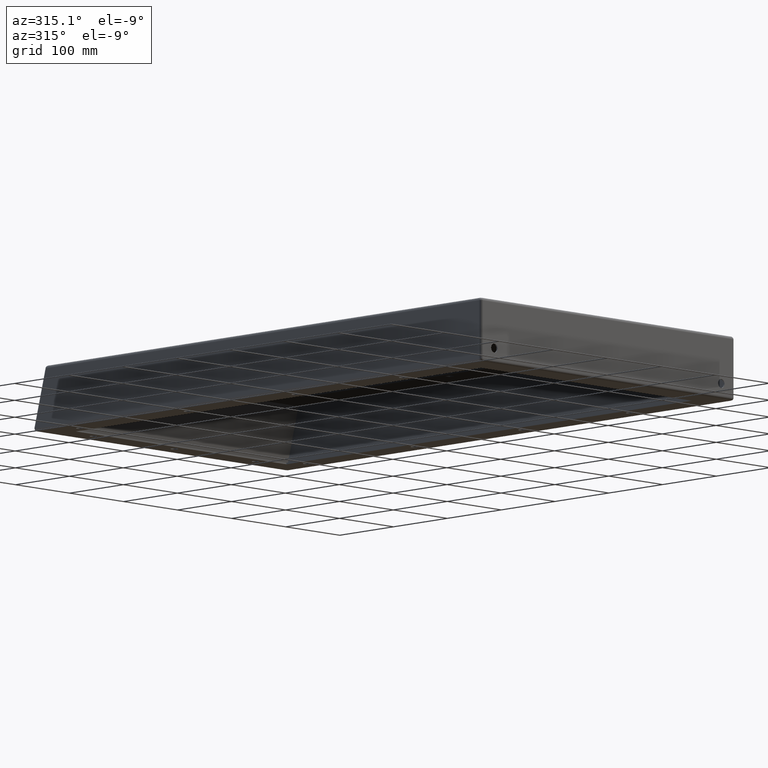
[diagram: clean part render]
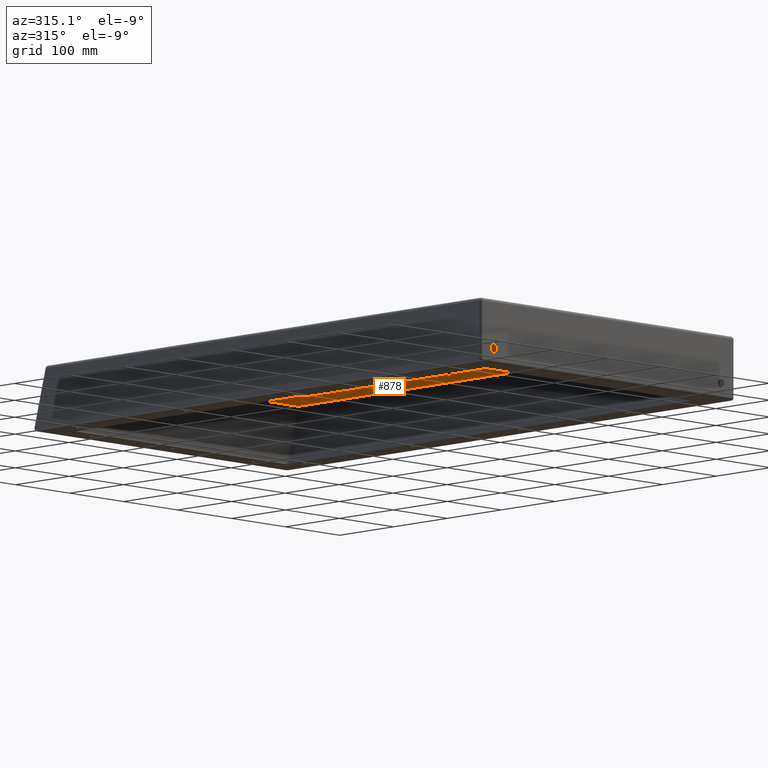
[diagram: same view with one face highlighted and labeled with its STEP entity id]
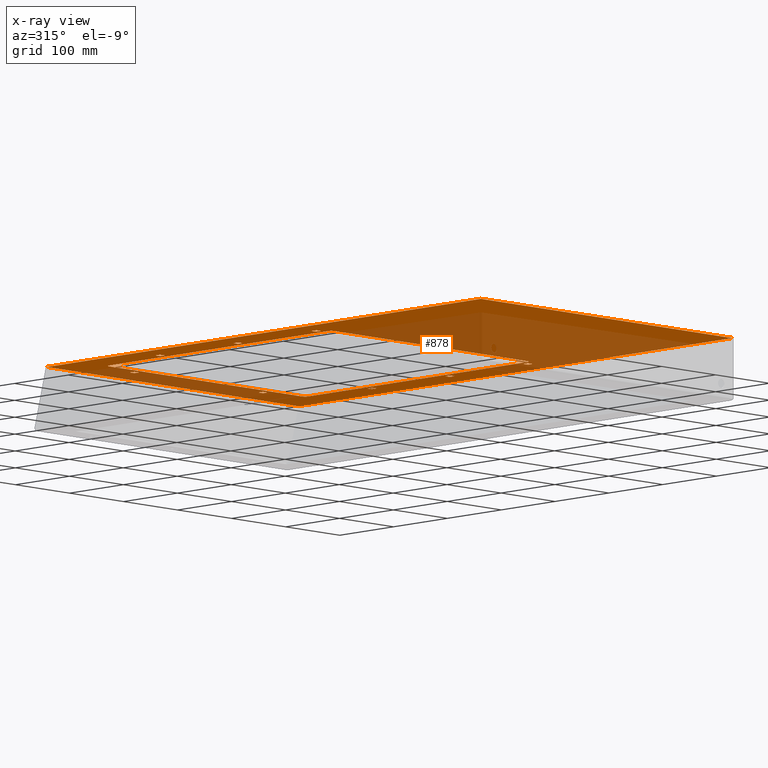
[diagram: x-ray of the same camera — body ghosted, the highlighted face saturated]
A machine part, auxiliary view. The second image highlights one B-rep face of the part: STEP entity #878.
The next image is the same camera in x-ray: the body ghosted, the highlighted face saturated — about 55% of this face is hidden behind the body in this view.
In plain terms, the highlighted planar face has unit normal (0, 0, -1).
Its self-contained STEP definition (entity closure, byte-faithful):
#2 = CARTESIAN_POINT ( 'NONE',  ( 114.7500000000003000, 810.0000000000004500, 83.00000000000008500 ) ) ;
#3 = DIRECTION ( 'NONE',  ( 3.265361837132874700E-015, 1.000000000000000000, 1.027984282060330300E-016 ) ) ;
#4 = CARTESIAN_POINT ( 'NONE',  ( 235.0000000000000000, 755.7500000000000000, 83.00000000000008500 ) ) ;
#5 = DIRECTION ( 'NONE',  ( -1.000000000000000000, 0.0000000000000000000, 0.0000000000000000000 ) ) ;
#6 = CARTESIAN_POINT ( 'NONE',  ( 123.2500000000002100, 810.0000000000002300, 83.00000000000008500 ) ) ;
#7 = DIRECTION ( 'NONE',  ( -1.632680918566437400E-015, -1.000000000000000000, -1.027984282060330300E-016 ) ) ;
#8 = CARTESIAN_POINT ( 'NONE',  ( -191.7499999999999700, 810.0000000000000000, 83.00000000000008500 ) ) ;
#9 = DIRECTION ( 'NONE',  ( 0.0000000000000000000, -1.000000000000000000, -1.027984282060330300E-016 ) ) ;
#10 = CARTESIAN_POINT ( 'NONE',  ( 235.0000000000000000, 494.2500000000000000, 83.00000000000005700 ) ) ;
#11 = DIRECTION ( 'NONE',  ( 1.000000000000000000, 0.0000000000000000000, 0.0000000000000000000 ) ) ;
#12 = CARTESIAN_POINT ( 'NONE',  ( -200.2500000000000300, 810.0000000000000000, 83.00000000000008500 ) ) ;
#13 = DIRECTION ( 'NONE',  ( 0.0000000000000000000, 1.000000000000000000, 1.027984282060330300E-016 ) ) ;
#14 = CARTESIAN_POINT ( 'NONE',  ( 235.0000000000000000, 485.7500000000000000, 83.00000000000005700 ) ) ;
#15 = DIRECTION ( 'NONE',  ( -1.000000000000000000, 0.0000000000000000000, 0.0000000000000000000 ) ) ;
#16 = CARTESIAN_POINT ( 'NONE',  ( 200.2500000000000000, 810.0000000000000000, 83.00000000000008500 ) ) ;
#17 = DIRECTION ( 'NONE',  ( 0.0000000000000000000, -1.000000000000000000, -1.027984282060330300E-016 ) ) ;
#18 = CARTESIAN_POINT ( 'NONE',  ( 235.0000000000000000, 349.2500000000000600, 83.00000000000004300 ) ) ;
#19 = DIRECTION ( 'NONE',  ( 1.000000000000000000, -0.0000000000000000000, 0.0000000000000000000 ) ) ;
#20 = CARTESIAN_POINT ( 'NONE',  ( 191.7500000000015100, 810.0000000000001100, 83.00000000000008500 ) ) ;
#21 = DIRECTION ( 'NONE',  ( 3.265361837132810800E-015, 1.000000000000000000, 1.027984282060330300E-016 ) ) ;
#22 = CARTESIAN_POINT ( 'NONE',  ( 235.0000000000000000, 340.7500000000000600, 83.00000000000004300 ) ) ;
#23 = DIRECTION ( 'NONE',  ( -1.000000000000000000, 0.0000000000000000000, 0.0000000000000000000 ) ) ;
#24 = CARTESIAN_POINT ( 'NONE',  ( -191.7499999999999700, 810.0000000000000000, 83.00000000000008500 ) ) ;
#25 = DIRECTION ( 'NONE',  ( 0.0000000000000000000, -1.000000000000000000, -1.027984282060330300E-016 ) ) ;
#26 = CARTESIAN_POINT ( 'NONE',  ( 235.0000000000000000, 349.2500000000000600, 83.00000000000004300 ) ) ;
#27 = DIRECTION ( 'NONE',  ( 1.000000000000000000, 0.0000000000000000000, 0.0000000000000000000 ) ) ;
#28 = CARTESIAN_POINT ( 'NONE',  ( -200.2500000000000300, 810.0000000000000000, 83.00000000000008500 ) ) ;
#29 = DIRECTION ( 'NONE',  ( 0.0000000000000000000, 1.000000000000000000, 1.027984282060330300E-016 ) ) ;
#30 = CARTESIAN_POINT ( 'NONE',  ( 235.0000000000000000, 340.7500000000000600, 83.00000000000004300 ) ) ;
#31 = DIRECTION ( 'NONE',  ( -1.000000000000000000, 0.0000000000000000000, 0.0000000000000000000 ) ) ;
#32 = CARTESIAN_POINT ( 'NONE',  ( 178.9999999999999400, 742.0000000000001100, 83.00000000000007100 ) ) ;
#33 = DIRECTION ( 'NONE',  ( -0.0000000000000000000, -1.027984282060330300E-016, 1.000000000000000000 ) ) ;
#34 = DIRECTION ( 'NONE',  ( 0.0000000000000000000, 1.000000000000000000, 0.0000000000000000000 ) ) ;
#35 = CARTESIAN_POINT ( 'NONE',  ( -179.0000000000000600, 742.0000000000000000, 83.00000000000007100 ) ) ;
#36 = DIRECTION ( 'NONE',  ( -0.0000000000000000000, -1.027984282060330300E-016, 1.000000000000000000 ) ) ;
#37 = DIRECTION ( 'NONE',  ( 0.0000000000000000000, 1.000000000000000000, 0.0000000000000000000 ) ) ;
#38 = CARTESIAN_POINT ( 'NONE',  ( -232.9999999999999700, 810.0000000000000000, 83.00000000000008500 ) ) ;
#39 = DIRECTION ( 'NONE',  ( 0.0000000000000000000, -1.000000000000000000, -1.027984282060330300E-016 ) ) ;
#40 = CARTESIAN_POINT ( 'NONE',  ( -179.0000000000000000, 334.0000000000000600, 83.00000000000002800 ) ) ;
#41 = DIRECTION ( 'NONE',  ( -0.0000000000000000000, -1.027984282060330300E-016, 1.000000000000000000 ) ) ;
#42 = DIRECTION ( 'NONE',  ( 0.0000000000000000000, 1.000000000000000000, 0.0000000000000000000 ) ) ;
#43 = CARTESIAN_POINT ( 'NONE',  ( 235.0000000000000000, 1.999999999999989600, 82.99999999999998600 ) ) ;
#44 = CARTESIAN_POINT ( 'NONE',  ( 179.0000000000000000, 334.0000000000000600, 83.00000000000002800 ) ) ;
#45 = DIRECTION ( 'NONE',  ( -0.0000000000000000000, -1.027984282060330300E-016, 1.000000000000000000 ) ) ;
#46 = DIRECTION ( 'NONE',  ( 0.0000000000000000000, 1.000000000000000000, 0.0000000000000000000 ) ) ;
#47 = CARTESIAN_POINT ( 'NONE',  ( 232.9999999999999700, 810.0000000000000000, 83.00000000000008500 ) ) ;
#48 = DIRECTION ( 'NONE',  ( 0.0000000000000000000, -1.000000000000000000, -1.027984282060330300E-016 ) ) ;
#49 = DIRECTION ( 'NONE',  ( -1.000000000000000000, 0.0000000000000000000, 0.0000000000000000000 ) ) ;
#153 = EDGE_LOOP ( 'NONE', ( #1584, #1585, #1586, #1587 ) ) ;
#157 = EDGE_LOOP ( 'NONE', ( #1570, #1571, #1572, #1573, #1574, #1575, #1582, #1583 ) ) ;
#179 = CARTESIAN_POINT ( 'NONE',  ( -123.2500000000001100, 755.7500000000000000, 83.00000000000008500 ) ) ;
#183 = CARTESIAN_POINT ( 'NONE',  ( -191.7500000000000000, 630.7499999999998900, 83.00000000000007100 ) ) ;
#188 = CARTESIAN_POINT ( 'NONE',  ( -200.2500000000000000, 630.7499999999998900, 83.00000000000007100 ) ) ;
#192 = CARTESIAN_POINT ( 'NONE',  ( 114.7500000000001100, 755.7500000000000000, 83.00000000000008500 ) ) ;
#193 = CARTESIAN_POINT ( 'NONE',  ( 191.7499999999999700, 485.7500000000000000, 83.00000000000005700 ) ) ;
#197 = CARTESIAN_POINT ( 'NONE',  ( -123.2500000000001400, 764.2499999999998900, 83.00000000000008500 ) ) ;
#198 = CARTESIAN_POINT ( 'NONE',  ( 200.2500000000000000, 485.7500000000000000, 83.00000000000005700 ) ) ;
#199 = CARTESIAN_POINT ( 'NONE',  ( 114.7500000000001400, 764.2499999999998900, 83.00000000000008500 ) ) ;
#200 = CARTESIAN_POINT ( 'NONE',  ( -114.7500000000001400, 764.2499999999998900, 83.00000000000008500 ) ) ;
#201 = CARTESIAN_POINT ( 'NONE',  ( -114.7500000000001400, 755.7500000000000000, 83.00000000000008500 ) ) ;
#202 = CARTESIAN_POINT ( 'NONE',  ( -191.7500000000000000, 494.2500000000000000, 83.00000000000005700 ) ) ;
#203 = CARTESIAN_POINT ( 'NONE',  ( -200.2500000000000300, 494.2500000000000000, 83.00000000000005700 ) ) ;
#204 = CARTESIAN_POINT ( 'NONE',  ( 123.2500000000001400, 764.2499999999998900, 83.00000000000008500 ) ) ;
#205 = CARTESIAN_POINT ( 'NONE',  ( 123.2500000000001300, 755.7500000000000000, 83.00000000000008500 ) ) ;
#206 = CARTESIAN_POINT ( 'NONE',  ( 200.2500000000000000, 349.2500000000000600, 83.00000000000004300 ) ) ;
#207 = CARTESIAN_POINT ( 'NONE',  ( 191.7500000000000000, 349.2500000000000600, 83.00000000000004300 ) ) ;
#208 = CARTESIAN_POINT ( 'NONE',  ( -191.7500000000000000, 485.7500000000000000, 83.00000000000005700 ) ) ;
#209 = CARTESIAN_POINT ( 'NONE',  ( -200.2500000000000000, 485.7500000000000000, 83.00000000000005700 ) ) ;
#210 = CARTESIAN_POINT ( 'NONE',  ( -191.7500000000000000, 349.2500000000000600, 83.00000000000004300 ) ) ;
#211 = CARTESIAN_POINT ( 'NONE',  ( -200.2500000000000300, 349.2500000000000600, 83.00000000000004300 ) ) ;
#212 = CARTESIAN_POINT ( 'NONE',  ( 200.2500000000000000, 340.7500000000000600, 83.00000000000004300 ) ) ;
#213 = CARTESIAN_POINT ( 'NONE',  ( 191.7499999999999700, 340.7500000000000600, 83.00000000000004300 ) ) ;
#214 = CARTESIAN_POINT ( 'NONE',  ( -191.7500000000000000, 340.7500000000000600, 83.00000000000004300 ) ) ;
#215 = CARTESIAN_POINT ( 'NONE',  ( -200.2500000000000000, 340.7500000000000600, 83.00000000000004300 ) ) ;
#216 = CARTESIAN_POINT ( 'NONE',  ( -232.9999999999999700, 1.999999999999989600, 83.00000000000000000 ) ) ;
#217 = CARTESIAN_POINT ( 'NONE',  ( 232.9999999999999700, 1.999999999999989600, 83.00000000000000000 ) ) ;
#305 = CARTESIAN_POINT ( 'NONE',  ( 191.7500000000000000, 494.2500000000000000, 83.00000000000005700 ) ) ;
#316 = CARTESIAN_POINT ( 'NONE',  ( 179.0000000000000000, 329.0000000000000600, 83.00000000000002800 ) ) ;
#323 = CARTESIAN_POINT ( 'NONE',  ( 200.2500000000000000, 494.2500000000000000, 83.00000000000005700 ) ) ;
#324 = CARTESIAN_POINT ( 'NONE',  ( 183.9999999999999400, 742.0000000000001100, 83.00000000000007100 ) ) ;
#543 = EDGE_LOOP ( 'NONE', ( #1554, #1555, #1556, #1557 ) ) ;
#544 = EDGE_LOOP ( 'NONE', ( #1566, #1567, #1568, #1569 ) ) ;
#545 = EDGE_LOOP ( 'NONE', ( #1558, #1559, #1560, #1561 ) ) ;
#551 = EDGE_LOOP ( 'NONE', ( #1542, #1543, #1544, #1545 ) ) ;
#558 = EDGE_LOOP ( 'NONE', ( #1550, #1551, #1552, #1553 ) ) ;
#559 = EDGE_LOOP ( 'NONE', ( #1562, #1563, #1564, #1565 ) ) ;
#766 = DIRECTION ( 'NONE',  ( 0.0000000000000000000, 1.027984282060330300E-016, -1.000000000000000000 ) ) ;
#769 = PLANE ( 'NONE',  #1821 ) ;
#770 = CARTESIAN_POINT ( 'NONE',  ( 235.0000000000000000, 810.0000000000000000, 83.00000000000008500 ) ) ;
#772 = DIRECTION ( 'NONE',  ( 0.0000000000000000000, 1.000000000000000000, 1.027984282060330300E-016 ) ) ;
#813 = EDGE_LOOP ( 'NONE', ( #1546, #1547, #1548, #1549 ) ) ;
#819 = EDGE_LOOP ( 'NONE', ( #1538, #1539, #1540, #1541 ) ) ;
#878 = ADVANCED_FACE ( 'NONE', ( #2159, #2161, #2158, #2160, #2157, #2162, #2163, #2164, #2165, #2166 ), #769, .T. ) ;
#886 = VERTEX_POINT ( 'NONE', #2252 ) ;
#889 = VERTEX_POINT ( 'NONE', #2244 ) ;
#893 = VERTEX_POINT ( 'NONE', #2257 ) ;
#895 = VERTEX_POINT ( 'NONE', #2259 ) ;
#897 = VERTEX_POINT ( 'NONE', #2260 ) ;
#903 = VERTEX_POINT ( 'NONE', #2266 ) ;
#906 = VERTEX_POINT ( 'NONE', #2269 ) ;
#908 = VERTEX_POINT ( 'NONE', #2271 ) ;
#909 = VERTEX_POINT ( 'NONE', #2272 ) ;
#911 = VERTEX_POINT ( 'NONE', #2274 ) ;
#912 = VERTEX_POINT ( 'NONE', #2275 ) ;
#914 = VERTEX_POINT ( 'NONE', #2277 ) ;
#915 = VERTEX_POINT ( 'NONE', #2278 ) ;
#916 = VERTEX_POINT ( 'NONE', #2279 ) ;
#1059 = EDGE_CURVE ( 'NONE', #1519, #895, #2605, .T. ) ;
#1061 = EDGE_CURVE ( 'NONE', #1511, #897, #2609, .T. ) ;
#1064 = EDGE_CURVE ( 'NONE', #886, #889, #2615, .T. ) ;
#1067 = EDGE_CURVE ( 'NONE', #906, #893, #2621, .T. ) ;
#1100 = EDGE_CURVE ( 'NONE', #912, #908, #2665, .T. ) ;
#1101 = EDGE_CURVE ( 'NONE', #911, #903, #2673, .T. ) ;
#1102 = EDGE_CURVE ( 'NONE', #909, #911, #2675, .T. ) ;
#1103 = EDGE_CURVE ( 'NONE', #915, #909, #2677, .T. ) ;
#1104 = EDGE_CURVE ( 'NONE', #903, #915, #2679, .T. ) ;
#1105 = EDGE_CURVE ( 'NONE', #914, #1282, #2681, .T. ) ;
#1106 = EDGE_CURVE ( 'NONE', #916, #914, #2683, .T. ) ;
#1107 = EDGE_CURVE ( 'NONE', #1283, #916, #2685, .T. ) ;
#1108 = EDGE_CURVE ( 'NONE', #1282, #1283, #2687, .T. ) ;
#1109 = EDGE_CURVE ( 'NONE', #1518, #1286, #2689, .T. ) ;
#1110 = EDGE_CURVE ( 'NONE', #1500, #1518, #2691, .T. ) ;
#1111 = EDGE_CURVE ( 'NONE', #1287, #1500, #2693, .T. ) ;
#1112 = EDGE_CURVE ( 'NONE', #1286, #1287, #2695, .T. ) ;
#1113 = EDGE_CURVE ( 'NONE', #1284, #1290, #2697, .T. ) ;
#1114 = EDGE_CURVE ( 'NONE', #1285, #1284, #2699, .T. ) ;
#1115 = EDGE_CURVE ( 'NONE', #1291, #1285, #2701, .T. ) ;
#1116 = EDGE_CURVE ( 'NONE', #1290, #1291, #2703, .T. ) ;
#1117 = EDGE_CURVE ( 'NONE', #1288, #1294, #2705, .T. ) ;
#1118 = EDGE_CURVE ( 'NONE', #1289, #1288, #2707, .T. ) ;
#1119 = EDGE_CURVE ( 'NONE', #1295, #1289, #2709, .T. ) ;
#1120 = EDGE_CURVE ( 'NONE', #1294, #1295, #2711, .T. ) ;
#1121 = EDGE_CURVE ( 'NONE', #1292, #1298, #2713, .T. ) ;
#1122 = EDGE_CURVE ( 'NONE', #1293, #1292, #2715, .T. ) ;
#1123 = EDGE_CURVE ( 'NONE', #1299, #1293, #2717, .T. ) ;
#1124 = EDGE_CURVE ( 'NONE', #1298, #1299, #2719, .T. ) ;
#1125 = EDGE_CURVE ( 'NONE', #1296, #1302, #2721, .T. ) ;
#1126 = EDGE_CURVE ( 'NONE', #1297, #1296, #2723, .T. ) ;
#1127 = EDGE_CURVE ( 'NONE', #1303, #1297, #2725, .T. ) ;
#1128 = EDGE_CURVE ( 'NONE', #1302, #1303, #2727, .T. ) ;
#1129 = EDGE_CURVE ( 'NONE', #1300, #1304, #2729, .T. ) ;
#1130 = EDGE_CURVE ( 'NONE', #1301, #1300, #2731, .T. ) ;
#1131 = EDGE_CURVE ( 'NONE', #1305, #1301, #2733, .T. ) ;
#1132 = EDGE_CURVE ( 'NONE', #1304, #1305, #2735, .T. ) ;
#1133 = EDGE_CURVE ( 'NONE', #1519, #893, #2737, .T. ) ;
#1134 = EDGE_CURVE ( 'NONE', #906, #889, #2671, .T. ) ;
#1135 = EDGE_CURVE ( 'NONE', #886, #897, #2740, .T. ) ;
#1136 = EDGE_CURVE ( 'NONE', #1511, #895, #2741, .T. ) ;
#1137 = EDGE_CURVE ( 'NONE', #908, #1306, #2742, .T. ) ;
#1138 = EDGE_CURVE ( 'NONE', #912, #1307, #2743, .T. ) ;
#1139 = EDGE_CURVE ( 'NONE', #1307, #1306, #2739, .T. ) ;
#1282 = VERTEX_POINT ( 'NONE', #183 ) ;
#1283 = VERTEX_POINT ( 'NONE', #188 ) ;
#1284 = VERTEX_POINT ( 'NONE', #197 ) ;
#1285 = VERTEX_POINT ( 'NONE', #179 ) ;
#1286 = VERTEX_POINT ( 'NONE', #198 ) ;
#1287 = VERTEX_POINT ( 'NONE', #193 ) ;
#1288 = VERTEX_POINT ( 'NONE', #199 ) ;
#1289 = VERTEX_POINT ( 'NONE', #192 ) ;
#1290 = VERTEX_POINT ( 'NONE', #200 ) ;
#1291 = VERTEX_POINT ( 'NONE', #201 ) ;
#1292 = VERTEX_POINT ( 'NONE', #202 ) ;
#1293 = VERTEX_POINT ( 'NONE', #203 ) ;
#1294 = VERTEX_POINT ( 'NONE', #204 ) ;
#1295 = VERTEX_POINT ( 'NONE', #205 ) ;
#1296 = VERTEX_POINT ( 'NONE', #206 ) ;
#1297 = VERTEX_POINT ( 'NONE', #207 ) ;
#1298 = VERTEX_POINT ( 'NONE', #208 ) ;
#1299 = VERTEX_POINT ( 'NONE', #209 ) ;
#1300 = VERTEX_POINT ( 'NONE', #210 ) ;
#1301 = VERTEX_POINT ( 'NONE', #211 ) ;
#1302 = VERTEX_POINT ( 'NONE', #212 ) ;
#1303 = VERTEX_POINT ( 'NONE', #213 ) ;
#1304 = VERTEX_POINT ( 'NONE', #214 ) ;
#1305 = VERTEX_POINT ( 'NONE', #215 ) ;
#1306 = VERTEX_POINT ( 'NONE', #216 ) ;
#1307 = VERTEX_POINT ( 'NONE', #217 ) ;
#1500 = VERTEX_POINT ( 'NONE', #305 ) ;
#1511 = VERTEX_POINT ( 'NONE', #316 ) ;
#1518 = VERTEX_POINT ( 'NONE', #323 ) ;
#1519 = VERTEX_POINT ( 'NONE', #324 ) ;
#1538 = ORIENTED_EDGE ( 'NONE', *, *, #1101, .F. ) ;
#1539 = ORIENTED_EDGE ( 'NONE', *, *, #1102, .F. ) ;
#1540 = ORIENTED_EDGE ( 'NONE', *, *, #1103, .F. ) ;
#1541 = ORIENTED_EDGE ( 'NONE', *, *, #1104, .F. ) ;
#1542 = ORIENTED_EDGE ( 'NONE', *, *, #1105, .F. ) ;
#1543 = ORIENTED_EDGE ( 'NONE', *, *, #1106, .F. ) ;
#1544 = ORIENTED_EDGE ( 'NONE', *, *, #1107, .F. ) ;
#1545 = ORIENTED_EDGE ( 'NONE', *, *, #1108, .F. ) ;
#1546 = ORIENTED_EDGE ( 'NONE', *, *, #1109, .F. ) ;
#1547 = ORIENTED_EDGE ( 'NONE', *, *, #1110, .F. ) ;
#1548 = ORIENTED_EDGE ( 'NONE', *, *, #1111, .F. ) ;
#1549 = ORIENTED_EDGE ( 'NONE', *, *, #1112, .F. ) ;
#1550 = ORIENTED_EDGE ( 'NONE', *, *, #1113, .F. ) ;
#1551 = ORIENTED_EDGE ( 'NONE', *, *, #1114, .F. ) ;
#1552 = ORIENTED_EDGE ( 'NONE', *, *, #1115, .F. ) ;
#1553 = ORIENTED_EDGE ( 'NONE', *, *, #1116, .F. ) ;
#1554 = ORIENTED_EDGE ( 'NONE', *, *, #1117, .F. ) ;
#1555 = ORIENTED_EDGE ( 'NONE', *, *, #1118, .F. ) ;
#1556 = ORIENTED_EDGE ( 'NONE', *, *, #1119, .F. ) ;
#1557 = ORIENTED_EDGE ( 'NONE', *, *, #1120, .F. ) ;
#1558 = ORIENTED_EDGE ( 'NONE', *, *, #1121, .F. ) ;
#1559 = ORIENTED_EDGE ( 'NONE', *, *, #1122, .F. ) ;
#1560 = ORIENTED_EDGE ( 'NONE', *, *, #1123, .F. ) ;
#1561 = ORIENTED_EDGE ( 'NONE', *, *, #1124, .F. ) ;
#1562 = ORIENTED_EDGE ( 'NONE', *, *, #1125, .F. ) ;
#1563 = ORIENTED_EDGE ( 'NONE', *, *, #1126, .F. ) ;
#1564 = ORIENTED_EDGE ( 'NONE', *, *, #1127, .F. ) ;
#1565 = ORIENTED_EDGE ( 'NONE', *, *, #1128, .F. ) ;
#1566 = ORIENTED_EDGE ( 'NONE', *, *, #1129, .F. ) ;
#1567 = ORIENTED_EDGE ( 'NONE', *, *, #1130, .F. ) ;
#1568 = ORIENTED_EDGE ( 'NONE', *, *, #1131, .F. ) ;
#1569 = ORIENTED_EDGE ( 'NONE', *, *, #1132, .F. ) ;
#1570 = ORIENTED_EDGE ( 'NONE', *, *, #1059, .F. ) ;
#1571 = ORIENTED_EDGE ( 'NONE', *, *, #1133, .T. ) ;
#1572 = ORIENTED_EDGE ( 'NONE', *, *, #1067, .F. ) ;
#1573 = ORIENTED_EDGE ( 'NONE', *, *, #1134, .T. ) ;
#1574 = ORIENTED_EDGE ( 'NONE', *, *, #1064, .F. ) ;
#1575 = ORIENTED_EDGE ( 'NONE', *, *, #1135, .T. ) ;
#1582 = ORIENTED_EDGE ( 'NONE', *, *, #1061, .F. ) ;
#1583 = ORIENTED_EDGE ( 'NONE', *, *, #1136, .T. ) ;
#1584 = ORIENTED_EDGE ( 'NONE', *, *, #1137, .F. ) ;
#1585 = ORIENTED_EDGE ( 'NONE', *, *, #1100, .F. ) ;
#1586 = ORIENTED_EDGE ( 'NONE', *, *, #1138, .T. ) ;
#1587 = ORIENTED_EDGE ( 'NONE', *, *, #1139, .T. ) ;
#1821 = AXIS2_PLACEMENT_3D ( 'NONE', #770, #766, #772 ) ;
#1876 = AXIS2_PLACEMENT_3D ( 'NONE', #32, #33, #34 ) ;
#1877 = AXIS2_PLACEMENT_3D ( 'NONE', #35, #36, #37 ) ;
#1878 = AXIS2_PLACEMENT_3D ( 'NONE', #40, #41, #42 ) ;
#1879 = AXIS2_PLACEMENT_3D ( 'NONE', #44, #45, #46 ) ;
#2157 = FACE_BOUND ( 'NONE', #543, .T. ) ;
#2158 = FACE_BOUND ( 'NONE', #813, .T. ) ;
#2159 = FACE_BOUND ( 'NONE', #819, .T. ) ;
#2160 = FACE_BOUND ( 'NONE', #558, .T. ) ;
#2161 = FACE_BOUND ( 'NONE', #551, .T. ) ;
#2162 = FACE_BOUND ( 'NONE', #545, .T. ) ;
#2163 = FACE_BOUND ( 'NONE', #559, .T. ) ;
#2164 = FACE_BOUND ( 'NONE', #544, .T. ) ;
#2165 = FACE_BOUND ( 'NONE', #157, .T. ) ;
#2166 = FACE_OUTER_BOUND ( 'NONE', #153, .T. ) ;
#2244 = CARTESIAN_POINT ( 'NONE',  ( -184.0000000000000600, 742.0000000000000000, 83.00000000000007100 ) ) ;
#2252 = CARTESIAN_POINT ( 'NONE',  ( -184.0000000000000000, 334.0000000000000600, 83.00000000000002800 ) ) ;
#2257 = CARTESIAN_POINT ( 'NONE',  ( 178.9999999999999400, 747.0000000000001100, 83.00000000000008500 ) ) ;
#2259 = CARTESIAN_POINT ( 'NONE',  ( 184.0000000000000000, 334.0000000000000600, 83.00000000000002800 ) ) ;
#2260 = CARTESIAN_POINT ( 'NONE',  ( -179.0000000000000000, 329.0000000000000600, 83.00000000000002800 ) ) ;
#2266 = CARTESIAN_POINT ( 'NONE',  ( 200.2500000000000000, 630.7499999999998900, 83.00000000000007100 ) ) ;
#2269 = CARTESIAN_POINT ( 'NONE',  ( -179.0000000000000300, 747.0000000000000000, 83.00000000000008500 ) ) ;
#2271 = CARTESIAN_POINT ( 'NONE',  ( -232.9999999999999700, 808.4653460240421100, 83.00000000000008500 ) ) ;
#2272 = CARTESIAN_POINT ( 'NONE',  ( 191.7500000000000000, 639.2500000000000000, 83.00000000000007100 ) ) ;
#2274 = CARTESIAN_POINT ( 'NONE',  ( 200.2500000000000000, 639.2500000000000000, 83.00000000000007100 ) ) ;
#2275 = CARTESIAN_POINT ( 'NONE',  ( 232.9999999999999700, 808.4653460240421100, 83.00000000000008500 ) ) ;
#2277 = CARTESIAN_POINT ( 'NONE',  ( -191.7500000000000000, 639.2500000000000000, 83.00000000000007100 ) ) ;
#2278 = CARTESIAN_POINT ( 'NONE',  ( 191.7499999999999700, 630.7499999999998900, 83.00000000000007100 ) ) ;
#2279 = CARTESIAN_POINT ( 'NONE',  ( -200.2500000000000300, 639.2500000000000000, 83.00000000000007100 ) ) ;
#2605 = LINE ( 'NONE', #2850, #2608 ) ;
#2608 = VECTOR ( 'NONE', #2851, 1000.000000000000000 ) ;
#2609 = LINE ( 'NONE', #2854, #2612 ) ;
#2612 = VECTOR ( 'NONE', #2855, 1000.000000000000000 ) ;
#2615 = LINE ( 'NONE', #2860, #2618 ) ;
#2618 = VECTOR ( 'NONE', #2861, 1000.000000000000000 ) ;
#2621 = LINE ( 'NONE', #2866, #2624 ) ;
#2624 = VECTOR ( 'NONE', #2867, 1000.000000000000000 ) ;
#2665 = LINE ( 'NONE', #2942, #2674 ) ;
#2671 = CIRCLE ( 'NONE', #1877, 5.000000000000004400 ) ;
#2673 = LINE ( 'NONE', #2950, #2676 ) ;
#2674 = VECTOR ( 'NONE', #2949, 1000.000000000000000 ) ;
#2675 = LINE ( 'NONE', #2952, #2678 ) ;
#2676 = VECTOR ( 'NONE', #2951, 1000.000000000000000 ) ;
#2677 = LINE ( 'NONE', #2954, #2680 ) ;
#2678 = VECTOR ( 'NONE', #2953, 1000.000000000000000 ) ;
#2679 = LINE ( 'NONE', #2956, #2682 ) ;
#2680 = VECTOR ( 'NONE', #2955, 1000.000000000000000 ) ;
#2681 = LINE ( 'NONE', #2958, #2684 ) ;
#2682 = VECTOR ( 'NONE', #2957, 1000.000000000000000 ) ;
#2683 = LINE ( 'NONE', #2960, #2686 ) ;
#2684 = VECTOR ( 'NONE', #2959, 1000.000000000000000 ) ;
#2685 = LINE ( 'NONE', #2962, #2688 ) ;
#2686 = VECTOR ( 'NONE', #2961, 1000.000000000000000 ) ;
#2687 = LINE ( 'NONE', #2964, #2690 ) ;
#2688 = VECTOR ( 'NONE', #2963, 1000.000000000000000 ) ;
#2689 = LINE ( 'NONE', #2966, #2692 ) ;
#2690 = VECTOR ( 'NONE', #2965, 1000.000000000000000 ) ;
#2691 = LINE ( 'NONE', #2968, #2694 ) ;
#2692 = VECTOR ( 'NONE', #2967, 1000.000000000000000 ) ;
#2693 = LINE ( 'NONE', #2970, #2696 ) ;
#2694 = VECTOR ( 'NONE', #2969, 1000.000000000000000 ) ;
#2695 = LINE ( 'NONE', #2972, #2698 ) ;
#2696 = VECTOR ( 'NONE', #2971, 1000.000000000000000 ) ;
#2697 = LINE ( 'NONE', #2974, #2700 ) ;
#2698 = VECTOR ( 'NONE', #2973, 1000.000000000000000 ) ;
#2699 = LINE ( 'NONE', #2976, #2702 ) ;
#2700 = VECTOR ( 'NONE', #2975, 1000.000000000000000 ) ;
#2701 = LINE ( 'NONE', #2978, #2704 ) ;
#2702 = VECTOR ( 'NONE', #2977, 1000.000000000000000 ) ;
#2703 = LINE ( 'NONE', #2980, #2706 ) ;
#2704 = VECTOR ( 'NONE', #2979, 1000.000000000000000 ) ;
#2705 = LINE ( 'NONE', #2982, #2708 ) ;
#2706 = VECTOR ( 'NONE', #2981, 1000.000000000000000 ) ;
#2707 = LINE ( 'NONE', #2, #2710 ) ;
#2708 = VECTOR ( 'NONE', #2983, 1000.000000000000000 ) ;
#2709 = LINE ( 'NONE', #4, #2712 ) ;
#2710 = VECTOR ( 'NONE', #3, 1000.000000000000000 ) ;
#2711 = LINE ( 'NONE', #6, #2714 ) ;
#2712 = VECTOR ( 'NONE', #5, 1000.000000000000000 ) ;
#2713 = LINE ( 'NONE', #8, #2716 ) ;
#2714 = VECTOR ( 'NONE', #7, 1000.000000000000000 ) ;
#2715 = LINE ( 'NONE', #10, #2718 ) ;
#2716 = VECTOR ( 'NONE', #9, 1000.000000000000000 ) ;
#2717 = LINE ( 'NONE', #12, #2720 ) ;
#2718 = VECTOR ( 'NONE', #11, 1000.000000000000000 ) ;
#2719 = LINE ( 'NONE', #14, #2722 ) ;
#2720 = VECTOR ( 'NONE', #13, 1000.000000000000000 ) ;
#2721 = LINE ( 'NONE', #16, #2724 ) ;
#2722 = VECTOR ( 'NONE', #15, 1000.000000000000000 ) ;
#2723 = LINE ( 'NONE', #18, #2726 ) ;
#2724 = VECTOR ( 'NONE', #17, 1000.000000000000000 ) ;
#2725 = LINE ( 'NONE', #20, #2728 ) ;
#2726 = VECTOR ( 'NONE', #19, 1000.000000000000000 ) ;
#2727 = LINE ( 'NONE', #22, #2730 ) ;
#2728 = VECTOR ( 'NONE', #21, 1000.000000000000000 ) ;
#2729 = LINE ( 'NONE', #24, #2732 ) ;
#2730 = VECTOR ( 'NONE', #23, 1000.000000000000000 ) ;
#2731 = LINE ( 'NONE', #26, #2734 ) ;
#2732 = VECTOR ( 'NONE', #25, 1000.000000000000000 ) ;
#2733 = LINE ( 'NONE', #28, #2736 ) ;
#2734 = VECTOR ( 'NONE', #27, 1000.000000000000000 ) ;
#2735 = LINE ( 'NONE', #30, #2738 ) ;
#2736 = VECTOR ( 'NONE', #29, 1000.000000000000000 ) ;
#2737 = CIRCLE ( 'NONE', #1876, 5.000000000000004400 ) ;
#2738 = VECTOR ( 'NONE', #31, 1000.000000000000000 ) ;
#2739 = LINE ( 'NONE', #43, #2747 ) ;
#2740 = CIRCLE ( 'NONE', #1878, 5.000000000000004400 ) ;
#2741 = CIRCLE ( 'NONE', #1879, 5.000000000000004400 ) ;
#2742 = LINE ( 'NONE', #38, #2744 ) ;
#2743 = LINE ( 'NONE', #47, #2745 ) ;
#2744 = VECTOR ( 'NONE', #39, 1000.000000000000000 ) ;
#2745 = VECTOR ( 'NONE', #48, 1000.000000000000000 ) ;
#2747 = VECTOR ( 'NONE', #49, 1000.000000000000000 ) ;
#2850 = CARTESIAN_POINT ( 'NONE',  ( 183.9999999999999400, 810.0000000000000000, 83.00000000000008500 ) ) ;
#2851 = DIRECTION ( 'NONE',  ( 1.328017972039661000E-016, -1.000000000000000000, -1.027984282060330300E-016 ) ) ;
#2854 = CARTESIAN_POINT ( 'NONE',  ( 235.0000000000000000, 329.0000000000000600, 83.00000000000002800 ) ) ;
#2855 = DIRECTION ( 'NONE',  ( -1.000000000000000000, 0.0000000000000000000, 0.0000000000000000000 ) ) ;
#2860 = CARTESIAN_POINT ( 'NONE',  ( -184.0000000000000600, 809.9999999999998900, 83.00000000000008500 ) ) ;
#2861 = DIRECTION ( 'NONE',  ( -1.328017972039661200E-016, 1.000000000000000000, 1.027984282060330300E-016 ) ) ;
#2866 = CARTESIAN_POINT ( 'NONE',  ( 235.0000000000000300, 747.0000000000001100, 83.00000000000008500 ) ) ;
#2867 = DIRECTION ( 'NONE',  ( 1.000000000000000000, 3.016910393003142900E-016, 3.101336464391684200E-032 ) ) ;
#2942 = CARTESIAN_POINT ( 'NONE',  ( 235.0000000000000000, 808.4653460240421100, 83.00000000000008500 ) ) ;
#2949 = DIRECTION ( 'NONE',  ( -1.000000000000000000, 0.0000000000000000000, 0.0000000000000000000 ) ) ;
#2950 = CARTESIAN_POINT ( 'NONE',  ( 200.2500000000000000, 810.0000000000000000, 83.00000000000008500 ) ) ;
#2951 = DIRECTION ( 'NONE',  ( 0.0000000000000000000, -1.000000000000000000, -1.027984282060330300E-016 ) ) ;
#2952 = CARTESIAN_POINT ( 'NONE',  ( 235.0000000000000000, 639.2500000000000000, 83.00000000000007100 ) ) ;
#2953 = DIRECTION ( 'NONE',  ( 1.000000000000000000, -0.0000000000000000000, 0.0000000000000000000 ) ) ;
#2954 = CARTESIAN_POINT ( 'NONE',  ( 191.7500000000005700, 810.0000000000001100, 83.00000000000008500 ) ) ;
#2955 = DIRECTION ( 'NONE',  ( 3.265361837132789900E-015, 1.000000000000000000, 1.027984282060330300E-016 ) ) ;
#2956 = CARTESIAN_POINT ( 'NONE',  ( 235.0000000000000000, 630.7499999999998900, 83.00000000000007100 ) ) ;
#2957 = DIRECTION ( 'NONE',  ( -1.000000000000000000, 0.0000000000000000000, 0.0000000000000000000 ) ) ;
#2958 = CARTESIAN_POINT ( 'NONE',  ( -191.7499999999999700, 810.0000000000000000, 83.00000000000008500 ) ) ;
#2959 = DIRECTION ( 'NONE',  ( 0.0000000000000000000, -1.000000000000000000, -1.027984282060330300E-016 ) ) ;
#2960 = CARTESIAN_POINT ( 'NONE',  ( 235.0000000000000000, 639.2500000000000000, 83.00000000000007100 ) ) ;
#2961 = DIRECTION ( 'NONE',  ( 1.000000000000000000, 0.0000000000000000000, 0.0000000000000000000 ) ) ;
#2962 = CARTESIAN_POINT ( 'NONE',  ( -200.2500000000000300, 810.0000000000000000, 83.00000000000008500 ) ) ;
#2963 = DIRECTION ( 'NONE',  ( 0.0000000000000000000, 1.000000000000000000, 1.027984282060330300E-016 ) ) ;
#2964 = CARTESIAN_POINT ( 'NONE',  ( 235.0000000000000000, 630.7499999999998900, 83.00000000000007100 ) ) ;
#2965 = DIRECTION ( 'NONE',  ( -1.000000000000000000, 0.0000000000000000000, 0.0000000000000000000 ) ) ;
#2966 = CARTESIAN_POINT ( 'NONE',  ( 200.2500000000000000, 810.0000000000000000, 83.00000000000008500 ) ) ;
#2967 = DIRECTION ( 'NONE',  ( 0.0000000000000000000, -1.000000000000000000, -1.027984282060330300E-016 ) ) ;
#2968 = CARTESIAN_POINT ( 'NONE',  ( 235.0000000000000000, 494.2500000000000000, 83.00000000000005700 ) ) ;
#2969 = DIRECTION ( 'NONE',  ( 1.000000000000000000, -0.0000000000000000000, 0.0000000000000000000 ) ) ;
#2970 = CARTESIAN_POINT ( 'NONE',  ( 191.7500000000010200, 810.0000000000001100, 83.00000000000008500 ) ) ;
#2971 = DIRECTION ( 'NONE',  ( 3.265361837132810800E-015, 1.000000000000000000, 1.027984282060330300E-016 ) ) ;
#2972 = CARTESIAN_POINT ( 'NONE',  ( 235.0000000000000000, 485.7500000000000000, 83.00000000000005700 ) ) ;
#2973 = DIRECTION ( 'NONE',  ( -1.000000000000000000, 0.0000000000000000000, 0.0000000000000000000 ) ) ;
#2974 = CARTESIAN_POINT ( 'NONE',  ( 235.0000000000000000, 764.2499999999998900, 83.00000000000008500 ) ) ;
#2975 = DIRECTION ( 'NONE',  ( 1.000000000000000000, 0.0000000000000000000, 0.0000000000000000000 ) ) ;
#2976 = CARTESIAN_POINT ( 'NONE',  ( -123.2500000000002000, 809.9999999999995500, 83.00000000000008500 ) ) ;
#2977 = DIRECTION ( 'NONE',  ( -1.632680918566437400E-015, 1.000000000000000000, 1.027984282060330300E-016 ) ) ;
#2978 = CARTESIAN_POINT ( 'NONE',  ( 235.0000000000000000, 755.7500000000000000, 83.00000000000008500 ) ) ;
#2979 = DIRECTION ( 'NONE',  ( -1.000000000000000000, 0.0000000000000000000, 0.0000000000000000000 ) ) ;
#2980 = CARTESIAN_POINT ( 'NONE',  ( -114.7500000000001300, 810.0000000000000000, 83.00000000000008500 ) ) ;
#2981 = DIRECTION ( 'NONE',  ( 0.0000000000000000000, -1.000000000000000000, -1.027984282060330300E-016 ) ) ;
#2982 = CARTESIAN_POINT ( 'NONE',  ( 235.0000000000000000, 764.2499999999998900, 83.00000000000008500 ) ) ;
#2983 = DIRECTION ( 'NONE',  ( 1.000000000000000000, -0.0000000000000000000, 0.0000000000000000000 ) ) ;